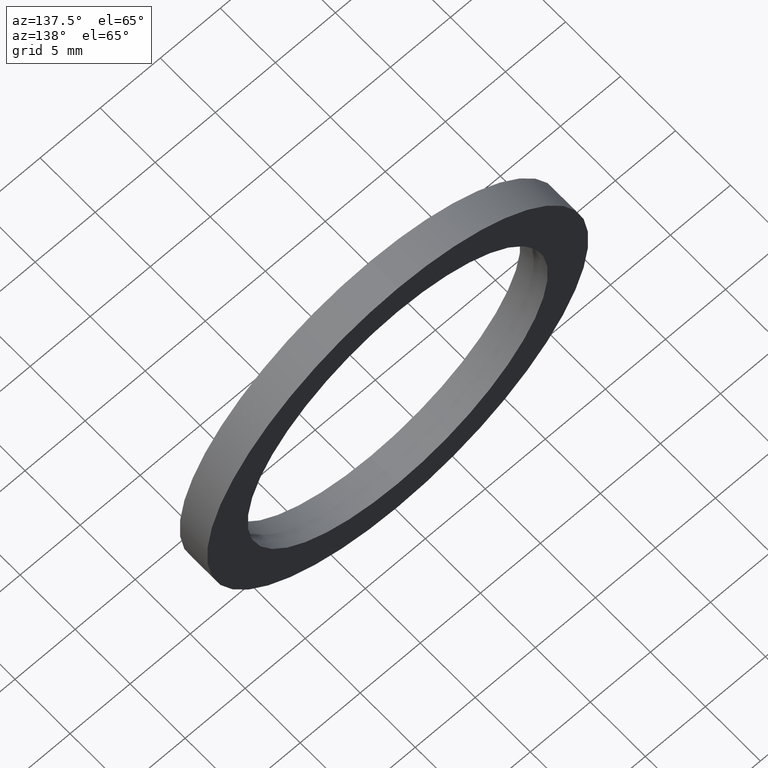
[diagram: clean part render]
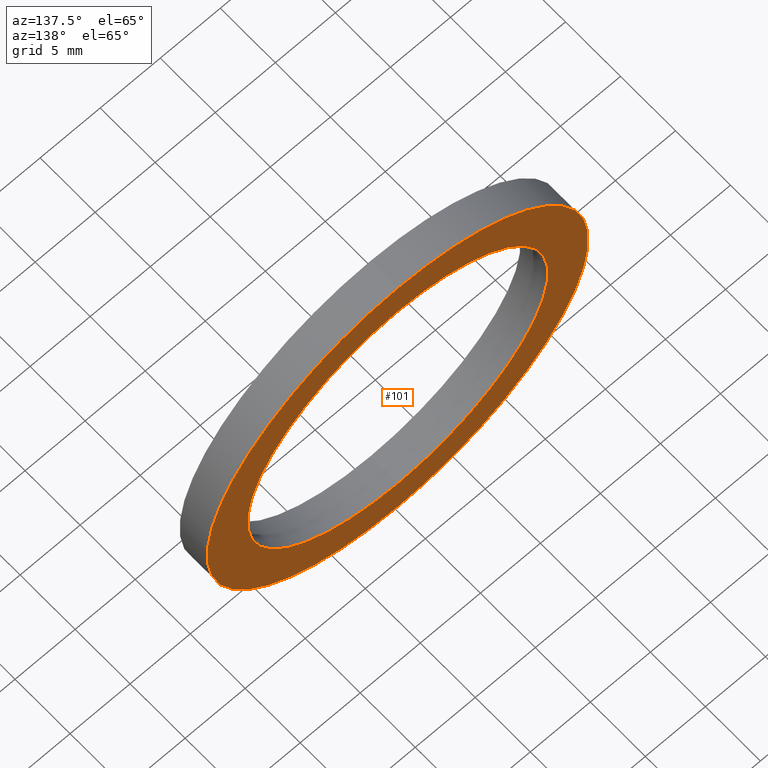
[diagram: same view with one face highlighted and labeled with its STEP entity id]
A machine part, auxiliary view. The second image highlights one B-rep face of the part: STEP entity #101.
In plain terms, the highlighted planar face has unit normal (0, -1, 0).
Its self-contained STEP definition (entity closure, byte-faithful):
#11 = ORIENTED_EDGE ( 'NONE', *, *, #232, .F. ) ;
#23 = ORIENTED_EDGE ( 'NONE', *, *, #125, .T. ) ;
#34 = DIRECTION ( 'NONE',  ( -0.0000000000000000000, 1.000000000000000000, -0.0000000000000000000 ) ) ;
#38 = CARTESIAN_POINT ( 'NONE',  ( 0.0000000000000000000, 2.500000000000002200, 15.87500000000001100 ) ) ;
#46 = EDGE_CURVE ( 'NONE', #171, #69, #104, .T. ) ;
#50 = CIRCLE ( 'NONE', #202, 15.87500000000001100 ) ;
#51 = VERTEX_POINT ( 'NONE', #74 ) ;
#52 = EDGE_LOOP ( 'NONE', ( #153, #23 ) ) ;
#69 = VERTEX_POINT ( 'NONE', #185 ) ;
#70 = DIRECTION ( 'NONE',  ( 0.0000000000000000000, -1.000000000000000000, 0.0000000000000000000 ) ) ;
#71 = CIRCLE ( 'NONE', #165, 15.87500000000001100 ) ;
#74 = CARTESIAN_POINT ( 'NONE',  ( 1.944126793646424800E-015, 2.500000000000002200, -15.87500000000001100 ) ) ;
#79 = DIRECTION ( 'NONE',  ( -0.0000000000000000000, 1.000000000000000000, -0.0000000000000000000 ) ) ;
#86 = CARTESIAN_POINT ( 'NONE',  ( 0.0000000000000000000, 2.500000000000002200, 0.0000000000000000000 ) ) ;
#88 = CARTESIAN_POINT ( 'NONE',  ( 0.0000000000000000000, 2.500000000000002200, 0.0000000000000000000 ) ) ;
#91 = DIRECTION ( 'NONE',  ( 0.0000000000000000000, -0.0000000000000000000, -1.000000000000000000 ) ) ;
#97 = CARTESIAN_POINT ( 'NONE',  ( 1.530808498934192900E-015, 2.500000000000002200, -12.50000000000001100 ) ) ;
#101 = ADVANCED_FACE ( 'NONE', ( #135, #141 ), #183, .F. ) ;
#104 = CIRCLE ( 'NONE', #190, 12.50000000000001100 ) ;
#110 = CARTESIAN_POINT ( 'NONE',  ( 0.0000000000000000000, 2.500000000000002200, 0.0000000000000000000 ) ) ;
#111 = DIRECTION ( 'NONE',  ( 0.0000000000000000000, 0.0000000000000000000, 1.000000000000000000 ) ) ;
#116 = AXIS2_PLACEMENT_3D ( 'NONE', #147, #79, #167 ) ;
#118 = CIRCLE ( 'NONE', #116, 12.50000000000001100 ) ;
#125 = EDGE_CURVE ( 'NONE', #51, #187, #71, .T. ) ;
#132 = DIRECTION ( 'NONE',  ( -0.0000000000000000000, 1.000000000000000000, -0.0000000000000000000 ) ) ;
#135 = FACE_BOUND ( 'NONE', #164, .T. ) ;
#136 = EDGE_CURVE ( 'NONE', #187, #51, #50, .T. ) ;
#141 = FACE_OUTER_BOUND ( 'NONE', #52, .T. ) ;
#147 = CARTESIAN_POINT ( 'NONE',  ( 0.0000000000000000000, 2.500000000000002200, 0.0000000000000000000 ) ) ;
#153 = ORIENTED_EDGE ( 'NONE', *, *, #136, .T. ) ;
#154 = AXIS2_PLACEMENT_3D ( 'NONE', #244, #70, #91 ) ;
#164 = EDGE_LOOP ( 'NONE', ( #11, #233 ) ) ;
#165 = AXIS2_PLACEMENT_3D ( 'NONE', #86, #221, #180 ) ;
#167 = DIRECTION ( 'NONE',  ( 0.0000000000000000000, 0.0000000000000000000, 1.000000000000000000 ) ) ;
#171 = VERTEX_POINT ( 'NONE', #97 ) ;
#180 = DIRECTION ( 'NONE',  ( 0.0000000000000000000, 0.0000000000000000000, 1.000000000000000000 ) ) ;
#183 = PLANE ( 'NONE',  #154 ) ;
#185 = CARTESIAN_POINT ( 'NONE',  ( 0.0000000000000000000, 2.500000000000002200, 12.50000000000001100 ) ) ;
#187 = VERTEX_POINT ( 'NONE', #38 ) ;
#190 = AXIS2_PLACEMENT_3D ( 'NONE', #88, #34, #242 ) ;
#202 = AXIS2_PLACEMENT_3D ( 'NONE', #110, #132, #111 ) ;
#221 = DIRECTION ( 'NONE',  ( -0.0000000000000000000, 1.000000000000000000, -0.0000000000000000000 ) ) ;
#232 = EDGE_CURVE ( 'NONE', #69, #171, #118, .T. ) ;
#233 = ORIENTED_EDGE ( 'NONE', *, *, #46, .F. ) ;
#242 = DIRECTION ( 'NONE',  ( 0.0000000000000000000, 0.0000000000000000000, 1.000000000000000000 ) ) ;
#244 = CARTESIAN_POINT ( 'NONE',  ( 12.50000000000001100, 2.500000000000000000, 0.0000000000000000000 ) ) ;